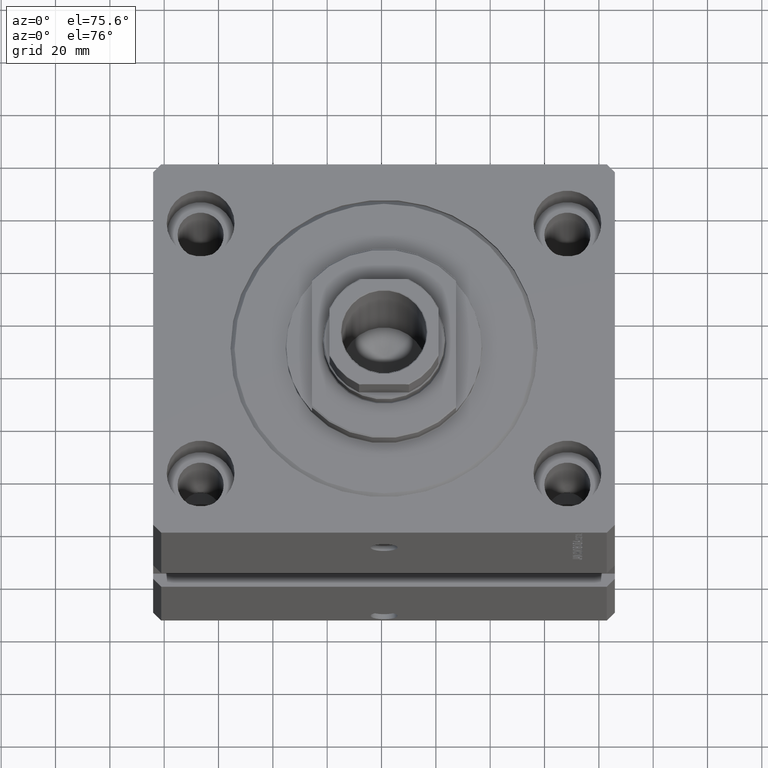
[diagram: clean part render]
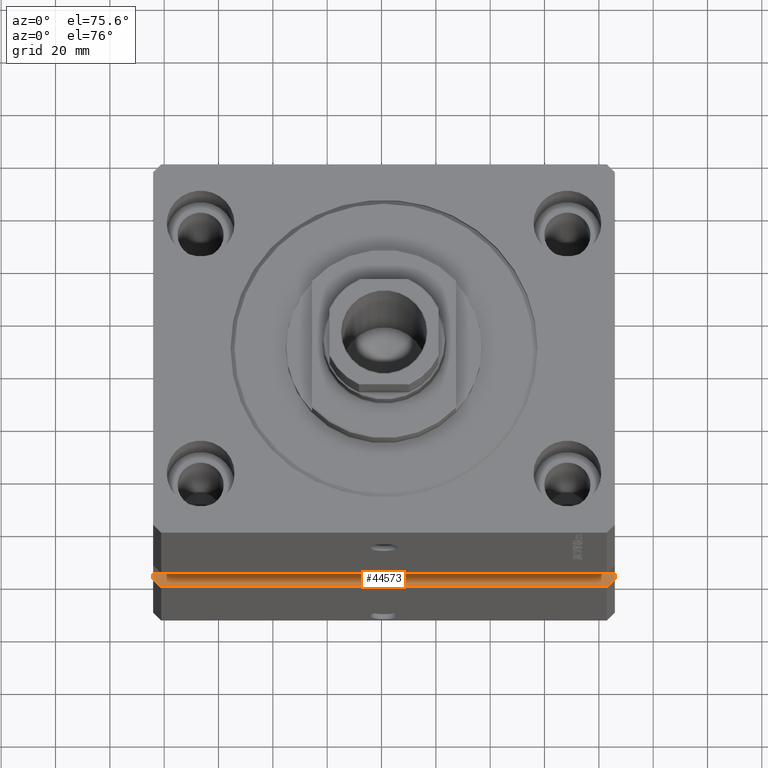
[diagram: same view with one face highlighted and labeled with its STEP entity id]
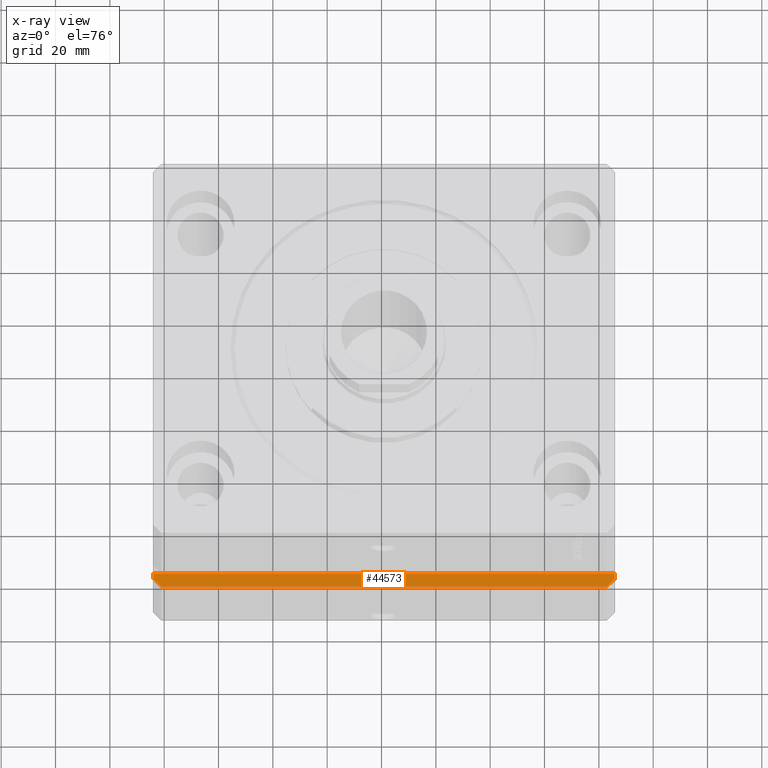
[diagram: x-ray of the same camera — body ghosted, the highlighted face saturated]
A machine part, auxiliary view. The second image highlights one B-rep face of the part: STEP entity #44573.
The next image is the same camera in x-ray: the body ghosted, the highlighted face saturated — about 0% of this face is hidden behind the body in this view.
In plain terms, the highlighted planar face has unit normal (0, 0, -1).
Its self-contained STEP definition (entity closure, byte-faithful):
#523 = VERTEX_POINT ( 'NONE', #13594 ) ;
#1626 = CARTESIAN_POINT ( 'NONE',  ( -85.00000000000001421, -65.00000000000001421, -80.00000000000001421 ) ) ;
#2777 = VECTOR ( 'NONE', #41549, 1000.000000000000000 ) ;
#3189 = CARTESIAN_POINT ( 'NONE',  ( 82.00000000000001421, -69.99999999999998579, -80.00000000000001421 ) ) ;
#4437 = ORIENTED_EDGE ( 'NONE', *, *, #11398, .T. ) ;
#5351 = ORIENTED_EDGE ( 'NONE', *, *, #15615, .T. ) ;
#5473 = FACE_OUTER_BOUND ( 'NONE', #11781, .T. ) ;
#5558 = DIRECTION ( 'NONE',  ( 0.7071067811865459074, 0.7071067811865491270, 0.000000000000000000 ) ) ;
#6167 = PLANE ( 'NONE',  #27297 ) ;
#7990 = VECTOR ( 'NONE', #41327, 1000.000000000000000 ) ;
#8060 = VECTOR ( 'NONE', #41359, 1000.000000000000114 ) ;
#8645 = EDGE_CURVE ( 'NONE', #16848, #32537, #13179, .T. ) ;
#9938 = DIRECTION ( 'NONE',  ( 1.176083712526788232E-16, -1.000000000000000000, -0.000000000000000000 ) ) ;
#11398 = EDGE_CURVE ( 'NONE', #16848, #14275, #20514, .T. ) ;
#11781 = EDGE_LOOP ( 'NONE', ( #35165, #32143, #28251, #4437, #5351, #37938 ) ) ;
#12274 = VECTOR ( 'NONE', #17326, 1000.000000000000000 ) ;
#12713 = CARTESIAN_POINT ( 'NONE',  ( 82.00000000000001421, -70.00000000000000000, -80.00000000000001421 ) ) ;
#13095 = DIRECTION ( 'NONE',  ( -1.000000000000000000, 0.000000000000000000, -0.000000000000000000 ) ) ;
#13156 = CARTESIAN_POINT ( 'NONE',  ( -85.00000000000001421, -67.00000000000000000, -80.00000000000001421 ) ) ;
#13179 = LINE ( 'NONE', #13637, #12274 ) ;
#13594 = CARTESIAN_POINT ( 'NONE',  ( -82.00000000000000000, -70.00000000000001421, -80.00000000000001421 ) ) ;
#13637 = CARTESIAN_POINT ( 'NONE',  ( -85.00000000000001421, -65.00000000000001421, -80.00000000000001421 ) ) ;
#13946 = CARTESIAN_POINT ( 'NONE',  ( -85.00000000000001421, -67.00000000000000000, -80.00000000000001421 ) ) ;
#14275 = VERTEX_POINT ( 'NONE', #13946 ) ;
#14694 = VECTOR ( 'NONE', #5558, 1000.000000000000000 ) ;
#15045 = LINE ( 'NONE', #12713, #14694 ) ;
#15615 = EDGE_CURVE ( 'NONE', #14275, #523, #20076, .T. ) ;
#15830 = CARTESIAN_POINT ( 'NONE',  ( -85.00000000000001421, -65.00000000000001421, -80.00000000000001421 ) ) ;
#16848 = VERTEX_POINT ( 'NONE', #15830 ) ;
#17326 = DIRECTION ( 'NONE',  ( 1.000000000000000000, 1.632680918566406300E-16, 0.000000000000000000 ) ) ;
#17579 = VERTEX_POINT ( 'NONE', #29762 ) ;
#17612 = EDGE_CURVE ( 'NONE', #523, #34524, #30919, .T. ) ;
#20076 = LINE ( 'NONE', #13156, #8060 ) ;
#20250 = CARTESIAN_POINT ( 'NONE',  ( -85.00000000000001421, -65.00000000000001421, -80.00000000000001421 ) ) ;
#20514 = LINE ( 'NONE', #1626, #2777 ) ;
#20794 = CARTESIAN_POINT ( 'NONE',  ( 85.00000000000001421, -64.99999999999998579, -80.00000000000001421 ) ) ;
#27297 = AXIS2_PLACEMENT_3D ( 'NONE', #20250, #44756, #13095 ) ;
#28251 = ORIENTED_EDGE ( 'NONE', *, *, #8645, .F. ) ;
#29762 = CARTESIAN_POINT ( 'NONE',  ( 85.00000000000001421, -66.99999999999998579, -80.00000000000001421 ) ) ;
#30919 = LINE ( 'NONE', #38549, #7990 ) ;
#32143 = ORIENTED_EDGE ( 'NONE', *, *, #32993, .F. ) ;
#32146 = VECTOR ( 'NONE', #9938, 1000.000000000000000 ) ;
#32537 = VERTEX_POINT ( 'NONE', #43734 ) ;
#32993 = EDGE_CURVE ( 'NONE', #32537, #17579, #41594, .T. ) ;
#34524 = VERTEX_POINT ( 'NONE', #3189 ) ;
#35165 = ORIENTED_EDGE ( 'NONE', *, *, #45415, .T. ) ;
#37938 = ORIENTED_EDGE ( 'NONE', *, *, #17612, .T. ) ;
#38549 = CARTESIAN_POINT ( 'NONE',  ( -85.00000000000001421, -70.00000000000001421, -80.00000000000001421 ) ) ;
#41327 = DIRECTION ( 'NONE',  ( 1.000000000000000000, 1.632680918566406300E-16, 0.000000000000000000 ) ) ;
#41359 = DIRECTION ( 'NONE',  ( 0.7071067811865474617, -0.7071067811865474617, 0.000000000000000000 ) ) ;
#41549 = DIRECTION ( 'NONE',  ( 1.176083712526788232E-16, -1.000000000000000000, -0.000000000000000000 ) ) ;
#41594 = LINE ( 'NONE', #20794, #32146 ) ;
#43734 = CARTESIAN_POINT ( 'NONE',  ( 85.00000000000001421, -64.99999999999998579, -80.00000000000001421 ) ) ;
#44573 = ADVANCED_FACE ( 'NONE', ( #5473 ), #6167, .F. ) ;
#44756 = DIRECTION ( 'NONE',  ( 0.000000000000000000, 0.000000000000000000, -1.000000000000000000 ) ) ;
#45415 = EDGE_CURVE ( 'NONE', #34524, #17579, #15045, .T. ) ;